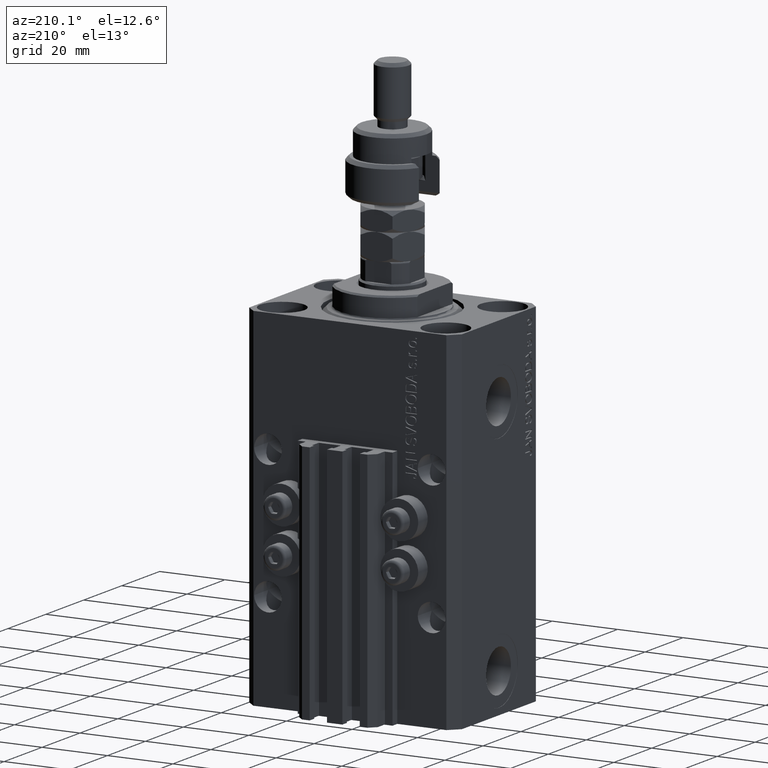
[diagram: clean part render]
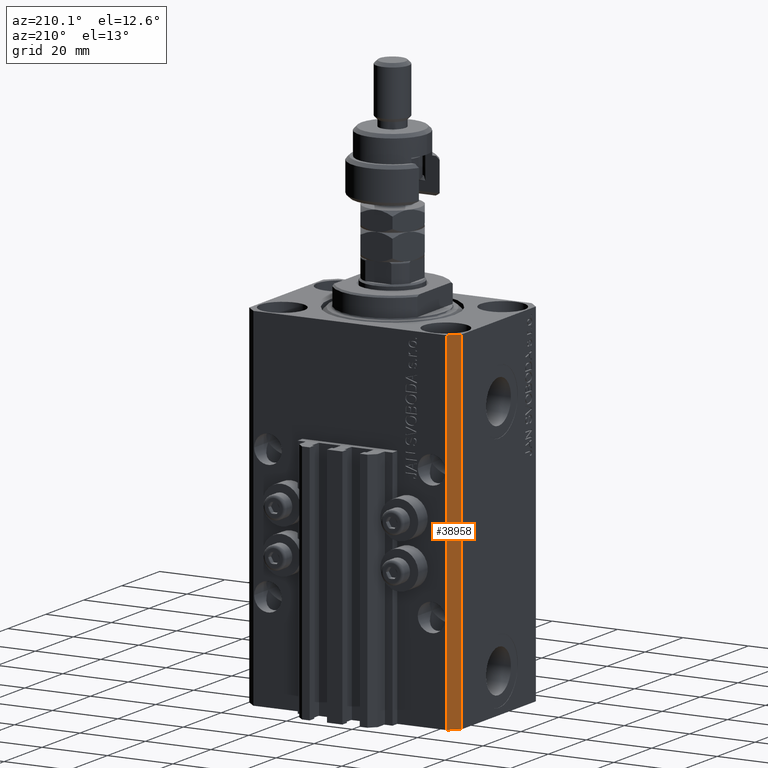
[diagram: same view with one face highlighted and labeled with its STEP entity id]
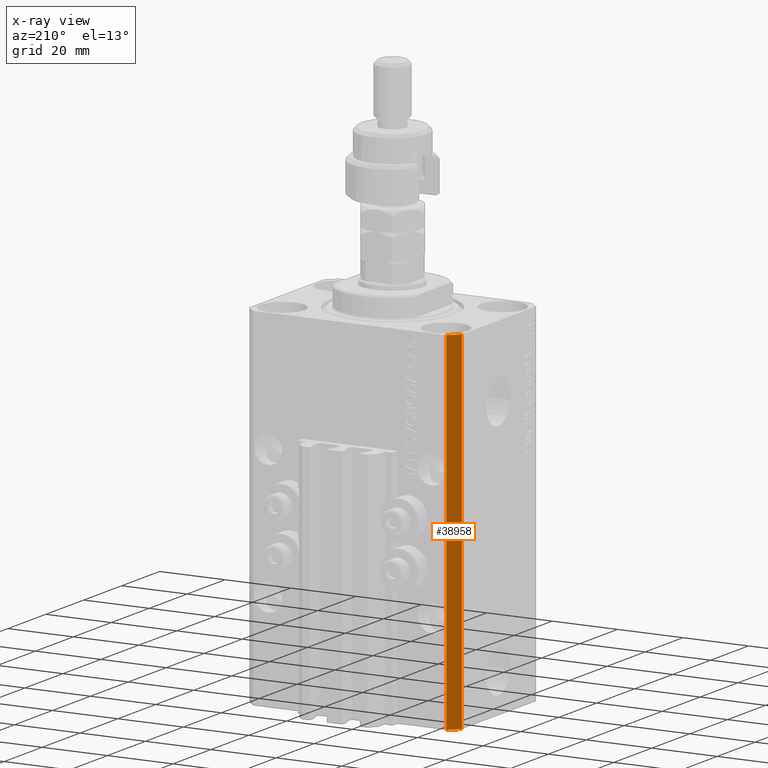
[diagram: x-ray of the same camera — body ghosted, the highlighted face saturated]
A machine part, auxiliary view. The second image highlights one B-rep face of the part: STEP entity #38958.
The next image is the same camera in x-ray: the body ghosted, the highlighted face saturated — about 0% of this face is hidden behind the body in this view.
In plain terms, the highlighted planar face has unit normal (-0.7071, 0.7071, 0).
Its self-contained STEP definition (entity closure, byte-faithful):
#435 = CARTESIAN_POINT ( 'NONE',  ( -29.49999999999650413, 22.49999999999949907, 0.000000000000000000 ) ) ;
#2184 = ORIENTED_EDGE ( 'NONE', *, *, #49610, .T. ) ;
#2447 = EDGE_CURVE ( 'NONE', #31559, #24322, #22168, .T. ) ;
#3158 = VECTOR ( 'NONE', #5020, 1000.000000000000000 ) ;
#4623 = CARTESIAN_POINT ( 'NONE',  ( -29.49999999999650413, 22.49999999999949907, -107.0000000000000000 ) ) ;
#5020 = DIRECTION ( 'NONE',  ( 0.000000000000000000, 0.000000000000000000, 1.000000000000000000 ) ) ;
#6298 = VECTOR ( 'NONE', #20103, 1000.000000000000114 ) ;
#11524 = CARTESIAN_POINT ( 'NONE',  ( -29.49999999999650413, 22.49999999999949907, 0.000000000000000000 ) ) ;
#12014 = CARTESIAN_POINT ( 'NONE',  ( -32.49999999999650413, 19.49999999999949907, 0.000000000000000000 ) ) ;
#12140 = CARTESIAN_POINT ( 'NONE',  ( -29.49999999999650413, 22.49999999999949907, -107.0000000000000000 ) ) ;
#16371 = VECTOR ( 'NONE', #17593, 1000.000000000000000 ) ;
#16963 = FACE_OUTER_BOUND ( 'NONE', #44127, .T. ) ;
#17593 = DIRECTION ( 'NONE',  ( 0.000000000000000000, 0.000000000000000000, 1.000000000000000000 ) ) ;
#18489 = DIRECTION ( 'NONE',  ( -0.7071067811865474617, -0.7071067811865474617, 0.000000000000000000 ) ) ;
#19460 = AXIS2_PLACEMENT_3D ( 'NONE', #12140, #31798, #23863 ) ;
#20103 = DIRECTION ( 'NONE',  ( -0.7071067811865474617, -0.7071067811865474617, 0.000000000000000000 ) ) ;
#21586 = CARTESIAN_POINT ( 'NONE',  ( -29.49999999999650413, 22.49999999999949907, -107.0000000000000000 ) ) ;
#22168 = LINE ( 'NONE', #41088, #16371 ) ;
#22567 = LINE ( 'NONE', #38398, #49044 ) ;
#23863 = DIRECTION ( 'NONE',  ( -0.7071067811865474617, -0.7071067811865474617, 0.000000000000000000 ) ) ;
#24322 = VERTEX_POINT ( 'NONE', #12014 ) ;
#28848 = ORIENTED_EDGE ( 'NONE', *, *, #40233, .F. ) ;
#31559 = VERTEX_POINT ( 'NONE', #42129 ) ;
#31798 = DIRECTION ( 'NONE',  ( -0.7071067811865475727, 0.7071067811865475727, 0.000000000000000000 ) ) ;
#32547 = EDGE_CURVE ( 'NONE', #48733, #24322, #35442, .T. ) ;
#32555 = PLANE ( 'NONE',  #19460 ) ;
#32596 = ORIENTED_EDGE ( 'NONE', *, *, #32547, .F. ) ;
#33092 = LINE ( 'NONE', #21586, #3158 ) ;
#35442 = LINE ( 'NONE', #435, #6298 ) ;
#38398 = CARTESIAN_POINT ( 'NONE',  ( -29.49999999999650413, 22.49999999999949907, -107.0000000000000000 ) ) ;
#38958 = ADVANCED_FACE ( 'NONE', ( #16963 ), #32555, .T. ) ;
#40233 = EDGE_CURVE ( 'NONE', #50095, #48733, #33092, .T. ) ;
#41088 = CARTESIAN_POINT ( 'NONE',  ( -32.49999999999650413, 19.49999999999949907, -107.0000000000000000 ) ) ;
#42129 = CARTESIAN_POINT ( 'NONE',  ( -32.49999999999650413, 19.49999999999949907, -107.0000000000000000 ) ) ;
#42431 = ORIENTED_EDGE ( 'NONE', *, *, #2447, .T. ) ;
#44127 = EDGE_LOOP ( 'NONE', ( #32596, #28848, #2184, #42431 ) ) ;
#48733 = VERTEX_POINT ( 'NONE', #11524 ) ;
#49044 = VECTOR ( 'NONE', #18489, 1000.000000000000114 ) ;
#49610 = EDGE_CURVE ( 'NONE', #50095, #31559, #22567, .T. ) ;
#50095 = VERTEX_POINT ( 'NONE', #4623 ) ;